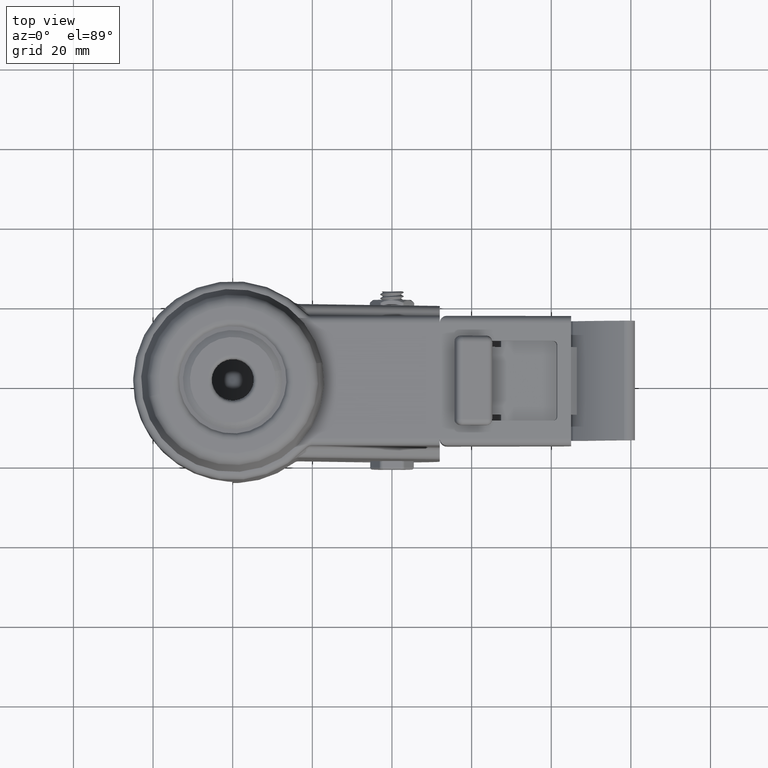
[diagram: clean part render]
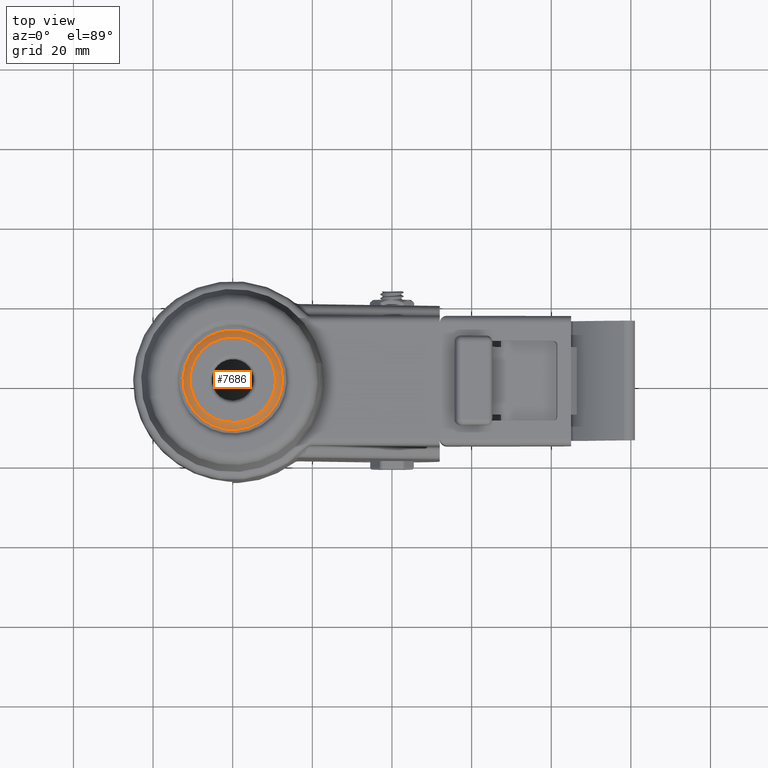
[diagram: same view with one face highlighted and labeled with its STEP entity id]
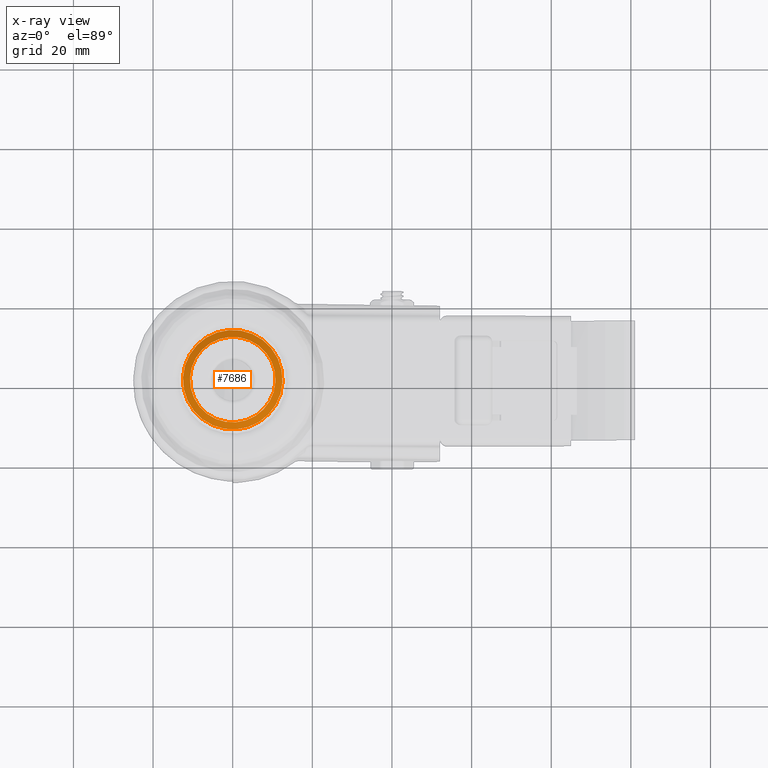
[diagram: x-ray of the same camera — body ghosted, the highlighted face saturated]
A machine part, top view. The second image highlights one B-rep face of the part: STEP entity #7686.
The next image is the same camera in x-ray: the body ghosted, the highlighted face saturated — about 0% of this face is hidden behind the body in this view.
In plain terms, the highlighted conical surface has half-angle 60.255 deg.
Its self-contained STEP definition (entity closure, byte-faithful):
#786=FACE_OUTER_BOUND('',#1259,.T.);
#1259=EDGE_LOOP('',(#5280,#5281,#5282,#5283));
#1768=LINE('',#11626,#2338);
#2338=VECTOR('',#9205,11.625);
#2908=CIRCLE('',#8272,12.5);
#2909=CIRCLE('',#8273,10.75);
#3335=VERTEX_POINT('',#11623);
#3336=VERTEX_POINT('',#11625);
#4089=EDGE_CURVE('',#3335,#3335,#2908,.T.);
#4090=EDGE_CURVE('',#3335,#3336,#1768,.T.);
#4091=EDGE_CURVE('',#3336,#3336,#2909,.T.);
#5280=ORIENTED_EDGE('',*,*,#4089,.F.);
#5281=ORIENTED_EDGE('',*,*,#4090,.T.);
#5282=ORIENTED_EDGE('',*,*,#4091,.F.);
#5283=ORIENTED_EDGE('',*,*,#4090,.F.);
#7662=CONICAL_SURFACE('',#8271,11.625,1.05165021254837);
#7686=ADVANCED_FACE('',(#786),#7662,.T.);
#8271=AXIS2_PLACEMENT_3D('',#11622,#9201,#9202);
#8272=AXIS2_PLACEMENT_3D('',#11624,#9203,#9204);
#8273=AXIS2_PLACEMENT_3D('',#11627,#9206,#9207);
#9201=DIRECTION('center_axis',(2.77679169120343E-16,0.,-1.));
#9202=DIRECTION('ref_axis',(-1.,0.,-2.77679169120343E-16));
#9203=DIRECTION('center_axis',(2.77679169120343E-16,0.,-1.));
#9204=DIRECTION('ref_axis',(-1.,0.,-2.77679169120343E-16));
#9205=DIRECTION('',(-0.868243142124458,1.06329118488436E-16,0.496138938356837));
#9206=DIRECTION('center_axis',(-2.16840434497101E-16,0.,1.));
#9207=DIRECTION('ref_axis',(-1.,0.,-2.16840434497101E-16));
#11622=CARTESIAN_POINT('Origin',(-2.26159226148798E-15,0.,-0.499999999999999));
#11623=CARTESIAN_POINT('',(12.5,1.53080849893419E-15,-0.999999999999995));
#11624=CARTESIAN_POINT('Origin',(-2.1227526769278E-15,0.,-0.999999999999998));
#11625=CARTESIAN_POINT('',(10.75,1.3164953090834E-15,5.96311194867027E-16));
#11626=CARTESIAN_POINT('',(11.625,-1.4236519040088E-15,-0.499999999999996));
#11627=CARTESIAN_POINT('Origin',(-2.40043184604815E-15,0.,-1.73472347597681E-15));